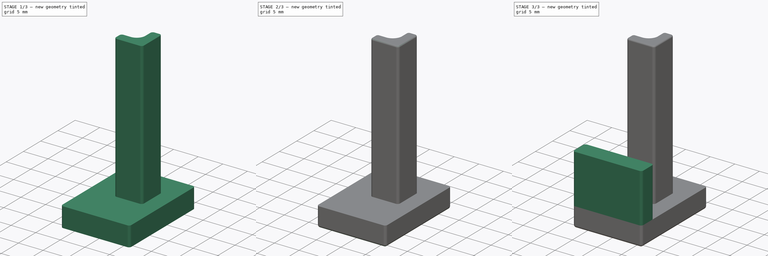
[diagram: build sequence overview — one tinted view per stage of 3, left to right]
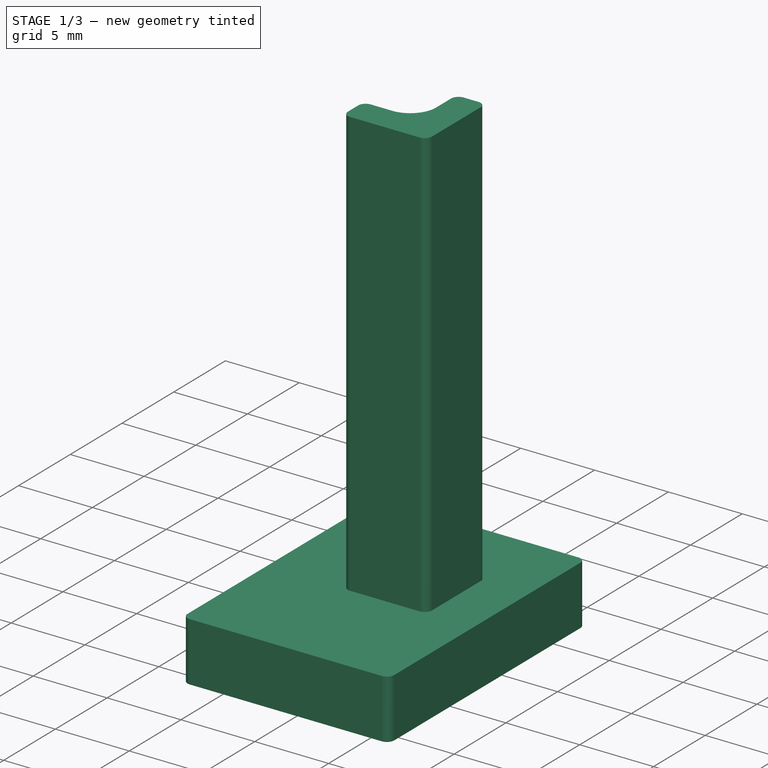
[diagram: stage 1 of 3 — iso view after this stage's code; geometry added in this stage tinted green]
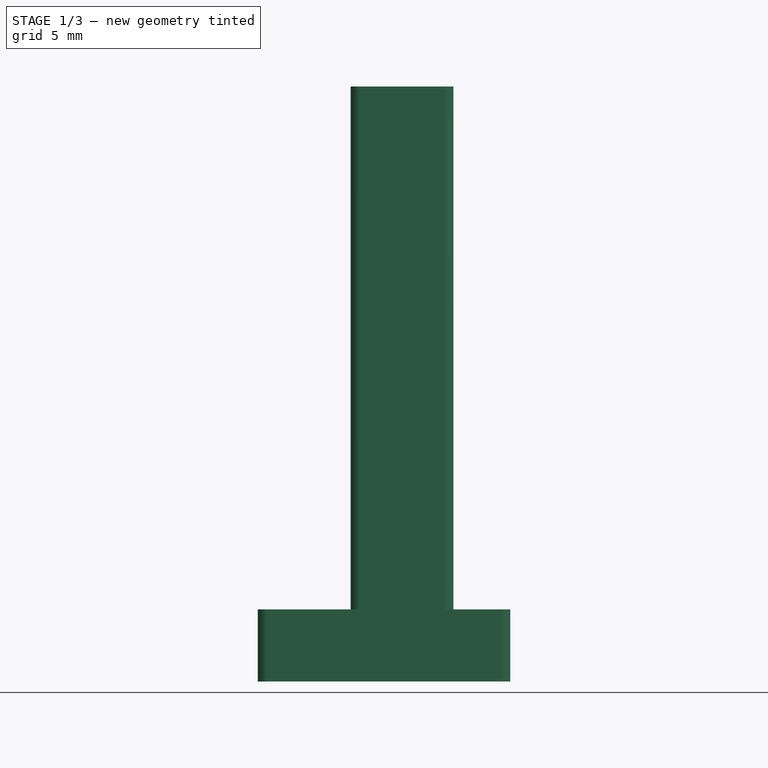
[diagram: stage 1 of 3 — front view after this stage's code; geometry added in this stage tinted green]
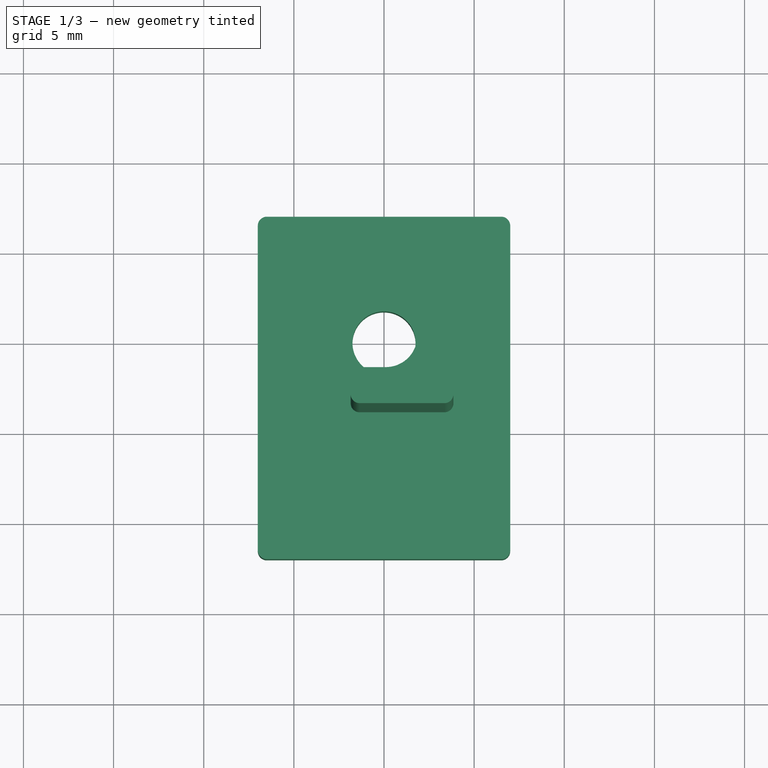
[diagram: stage 1 of 3 — top view after this stage's code; geometry added in this stage tinted green]
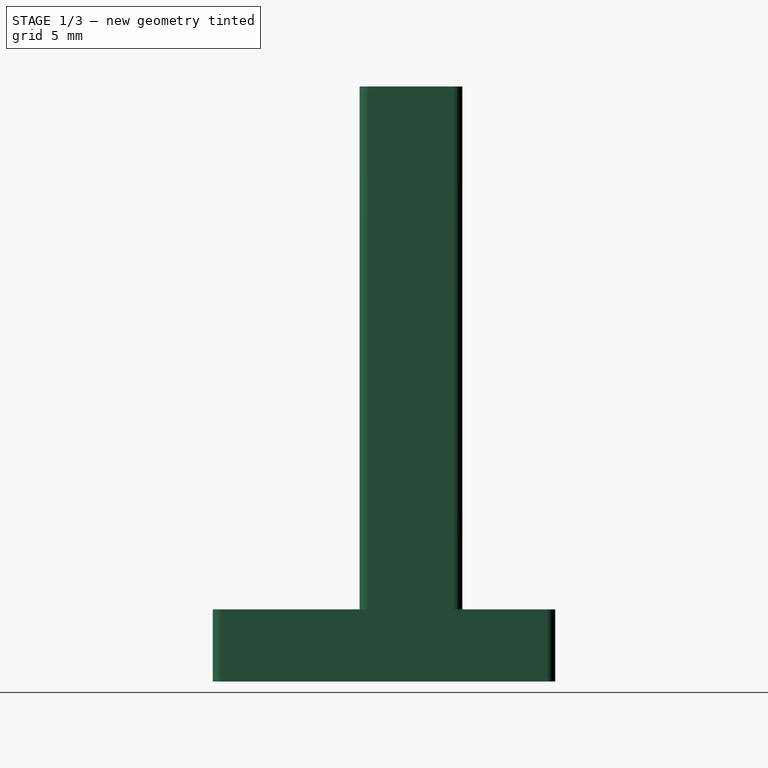
[diagram: stage 1 of 3 — right view after this stage's code; geometry added in this stage tinted green]
FCSTD DOCUMENT  (FreeCAD 0.21R33771 (Git))
Label: 20240522c_elfero_schraubenfassung_hinten
License: All rights reserved
LicenseURL: http://en.wikipedia.org/wiki/All_rights_reserved
objects: Sketcher::SketchObject×3, PartDesign::Pad×3, PartDesign::Fillet×3, PartDesign::Body×1
note: 16 computed .brp shape members not serialized (recipe doc carries the construction recipe); baked Part::Feature solids carry a one-line shape summary decoded from their .brp

FEATURE [Sketcher::SketchObject] Sketch
  FullyConstrained = true
  MapMode = 5
  Support = -> [XY_Plane]
  sketch-geometry (21):
    g0: Circle CenterX=0 CenterY=0 CenterZ=0 NormalX=0 NormalY=0 NormalZ=1 AngleXU=0 Radius=1.85
    g1: LineSegment StartX=2.35 StartY=1.85 StartZ=0 EndX=3.35 EndY=1.85 EndZ=0
    g2: LineSegment StartX=3.85 StartY=1.35 StartZ=0 EndX=3.85 EndY=-3.35 EndZ=0
    g3: LineSegment StartX=3.35 StartY=-3.85 StartZ=0 EndX=-1.35 EndY=-3.85 EndZ=0
    g4: LineSegment StartX=-1.85 StartY=-3.35 StartZ=0 EndX=-1.85 EndY=-2.35 EndZ=0
    g5: LineSegment StartX=-1.35 StartY=-1.85 StartZ=0 EndX=0.1 EndY=-1.85 EndZ=0
    g6: LineSegment StartX=1.85 StartY=-0.1 StartZ=0 EndX=1.85 EndY=1.35 EndZ=0
    g7: LineSegment StartX=1.85 StartY=1.85 StartZ=0 EndX=0 EndY=1.85 EndZ=0
    g8: LineSegment StartX=-1.85 StartY=-1.85 StartZ=0 EndX=-1.85 EndY=2e-16 EndZ=0
    g9: ArcOfCircle CenterX=3.35 CenterY=1.35 CenterZ=0 NormalX=0 NormalY=0 NormalZ=1 AngleXU=0 Radius=0.5 StartAngle=0 EndAngle=1.5708
    g10: GeomPoint X=3.85 Y=1.85 Z=0
    g11: ArcOfCircle CenterX=3.35 CenterY=-3.35 CenterZ=0 NormalX=0 NormalY=0 NormalZ=1 AngleXU=0 Radius=0.5 StartAngle=4.71239 EndAngle=6.28319
    g12: GeomPoint X=3.85 Y=-3.85 Z=0
    g13: ArcOfCircle CenterX=-1.35 CenterY=-3.35 CenterZ=0 NormalX=0 NormalY=0 NormalZ=1 AngleXU=0 Radius=0.5 StartAngle=3.14159 EndAngle=4.71239
    g14: GeomPoint X=-1.85 Y=-3.85 Z=0
    g15: ArcOfCircle CenterX=-1.35 CenterY=-2.35 CenterZ=0 NormalX=0 NormalY=0 NormalZ=1 AngleXU=0 Radius=0.5 StartAngle=1.5708 EndAngle=3.14159
    g16: GeomPoint X=-1.85 Y=-1.85 Z=0
    g17: ArcOfCircle CenterX=0.1 CenterY=-0.1 CenterZ=0 NormalX=0 NormalY=0 NormalZ=1 AngleXU=0 Radius=1.75 StartAngle=4.71239 EndAngle=6.28319
    g18: GeomPoint X=1.85 Y=-1.85 Z=0
    g19: ArcOfCircle CenterX=2.35 CenterY=1.35 CenterZ=0 NormalX=0 NormalY=0 NormalZ=1 AngleXU=0 Radius=0.5 StartAngle=1.5708 EndAngle=3.14159
    g20: GeomPoint X=1.85 Y=1.85 Z=0
  constraints (48):
    c: Coincident(g0,g-1)
    c: Diameter(g0) = 3.7
    c: Horizontal(g1)
    c: Vertical(g2)
    c: Horizontal(g3)
    c: Vertical(g4)
    c: Horizontal(g5)
    c: Vertical(g6)
    c: DistanceY(g12,g10) = 5.7
    c: DistanceX(g14,g12) = 5.7
    c: Tangent(g6,g0)
    c: Tangent(g0,g5)
    c: Coincident(g7,g20)
    c: Coincident(g8,g16)
    c: Vertical(g8)
    c: Horizontal(g7)
    c: Tangent(g7,g0) = -1.5708
    c: Tangent(g8,g0) = 1.5708
    c: PointOnObject(g10,g1)
    c: PointOnObject(g10,g2)
    c: Tangent(g1,g9) = 1.5708
    c: Tangent(g2,g9) = 1.5708
    c: PointOnObject(g12,g2)
    c: PointOnObject(g12,g3)
    c: Tangent(g2,g11) = 1.5708
    c: Tangent(g3,g11) = 1.5708
    c: PointOnObject(g14,g3)
    c: PointOnObject(g14,g4)
    c: Tangent(g3,g13) = 1.5708
    c: Tangent(g4,g13) = 1.5708
    c: PointOnObject(g16,g5)
    c: PointOnObject(g16,g4)
    c: Tangent(g5,g15) = 1.5708
    c: Tangent(g4,g15) = 1.5708
    c: PointOnObject(g18,g5)
    c: PointOnObject(g18,g6)
    c: Tangent(g5,g17) = -1.5708
    c: Tangent(g6,g17) = -1.5708
    c: PointOnObject(g20,g1)
    c: PointOnObject(g20,g6)
    c: Tangent(g1,g19) = 1.5708
    c: Tangent(g6,g19) = 1.5708
    c: Diameter(g17) = 3.5
    c: Equal(g15,g19)
    c: Radius(g19) = 0.5
    c: Equal(g9,g11)
    c: Equal(g11,g13)
    c: Radius(g9) = 0.5
FEATURE [PartDesign::Pad] Pad
  Direction = (0,0,1)
  Length = 29
  Length2 = 10
  Profile = -> Sketch
  ReferenceAxis = -> Sketch [N_Axis]
  Type = 0
FEATURE [Sketcher::SketchObject] Sketch001
  FullyConstrained = true
  MapMode = 5
  Support = -> [XY_Plane]
  sketch-geometry (13):
    g0: ArcOfCircle CenterX=-6.5 CenterY=6.5 CenterZ=0 NormalX=0 NormalY=0 NormalZ=1 AngleXU=0 Radius=0.5 StartAngle=1.5708 EndAngle=3.14159
    g1: LineSegment StartX=-6.5 StartY=7 StartZ=0 EndX=6.5 EndY=7 EndZ=0
    g2: ArcOfCircle CenterX=6.5 CenterY=6.5 CenterZ=0 NormalX=0 NormalY=0 NormalZ=1 AngleXU=0 Radius=0.5 StartAngle=0 EndAngle=1.5708
    g3: LineSegment StartX=7 StartY=6.5 StartZ=0 EndX=7 EndY=-11.5 EndZ=0
    g4: ArcOfCircle CenterX=6.5 CenterY=-11.5 CenterZ=0 NormalX=0 NormalY=0 NormalZ=1 AngleXU=0 Radius=0.5 StartAngle=4.71239 EndAngle=6.28319
    g5: LineSegment StartX=6.5 StartY=-12 StartZ=0 EndX=-6.5 EndY=-12 EndZ=0
    g6: ArcOfCircle CenterX=-6.5 CenterY=-11.5 CenterZ=0 NormalX=0 NormalY=0 NormalZ=1 AngleXU=0 Radius=0.5 StartAngle=3.14159 EndAngle=4.71239
    g7: LineSegment StartX=-7 StartY=-11.5 StartZ=0 EndX=-7 EndY=6.5 EndZ=0
    g8: GeomPoint X=-7 Y=7 Z=0
    g9: GeomPoint X=7 Y=-12 Z=0
    g10: LineSegment StartX=0 StartY=0 StartZ=0 EndX=-6.5 EndY=6.5 EndZ=0
    g11: Circle CenterX=0 CenterY=0 CenterZ=0 NormalX=0 NormalY=0 NormalZ=1 AngleXU=0 Radius=1.75
    g12: LineSegment StartX=6.5 StartY=6.5 StartZ=0 EndX=0 EndY=0 EndZ=0
  constraints (30):
    c: Tangent(g0,g1) = 1.5708
    c: Tangent(g1,g2) = 1.5708
    c: Tangent(g2,g3) = 1.5708
    c: Tangent(g3,g4) = 1.5708
    c: Tangent(g4,g5) = 1.5708
    c: Tangent(g5,g6) = 1.5708
    c: Tangent(g6,g7) = 1.5708
    c: Tangent(g7,g0) = 1.5708
    c: Horizontal(g1)
    c: Horizontal(g5)
    c: Vertical(g3)
    c: Vertical(g7)
    c: Equal(g0,g2)
    c: Equal(g2,g4)
    c: Equal(g4,g6)
    c: PointOnObject(g8,g1)
    c: PointOnObject(g8,g7)
    c: PointOnObject(g9,g3)
    c: PointOnObject(g9,g5)
    c: Radius(g2) = 0.5
    c: Coincident(g10,g-1)
    c: Coincident(g10,g0)
    c: Coincident(g11,g10)
    c: Diameter(g11) = 3.5
    c: Coincident(g12,g2)
    c: Coincident(g12,g11)
    c: Equal(g12,g10)
    c: DistanceX(g0,g2) = 14
    c: DistanceY(g8) = 7
    c: DistanceY(g5) = -12
FEATURE [PartDesign::Pad] Pad001
  BaseFeature = -> Pad
  Direction = (0,0,1)
  Length = 4
  Length2 = 10
  Profile = -> Sketch001
  ReferenceAxis = -> Sketch001 [N_Axis]
  Reversed = true
  Type = 0
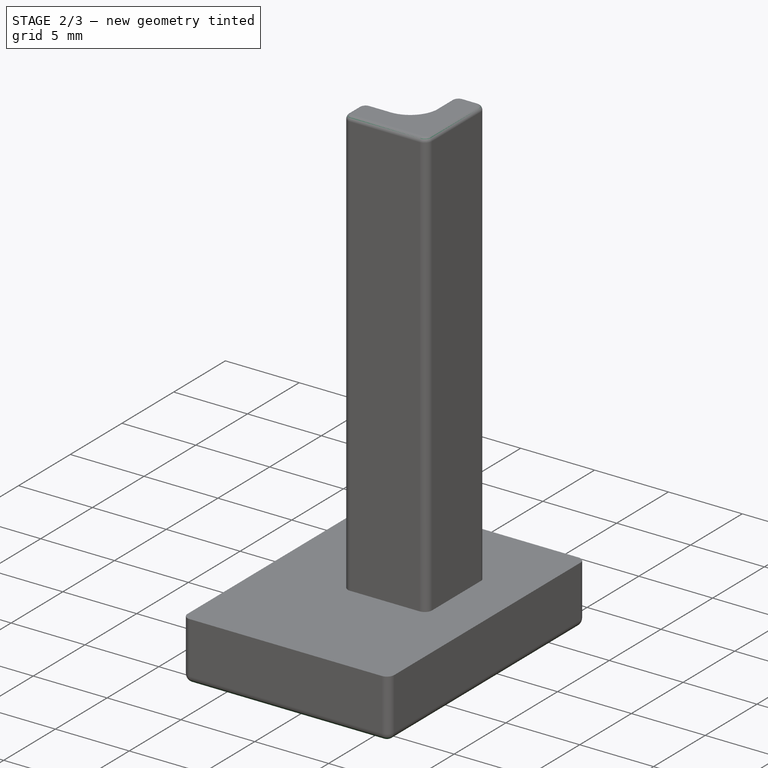
[diagram: stage 2 of 3 — iso view after this stage's code; geometry added in this stage tinted green]
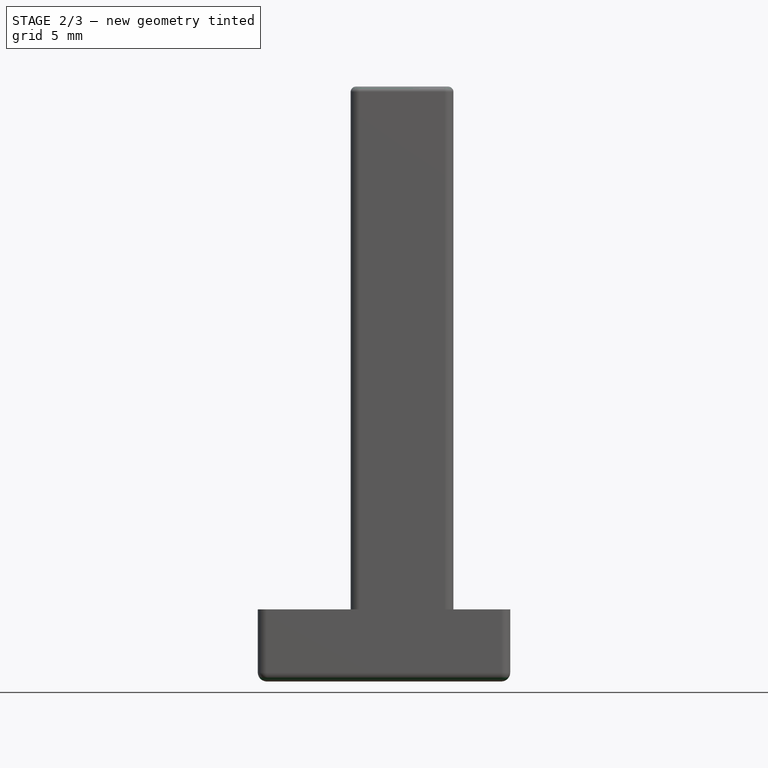
[diagram: stage 2 of 3 — front view after this stage's code; geometry added in this stage tinted green]
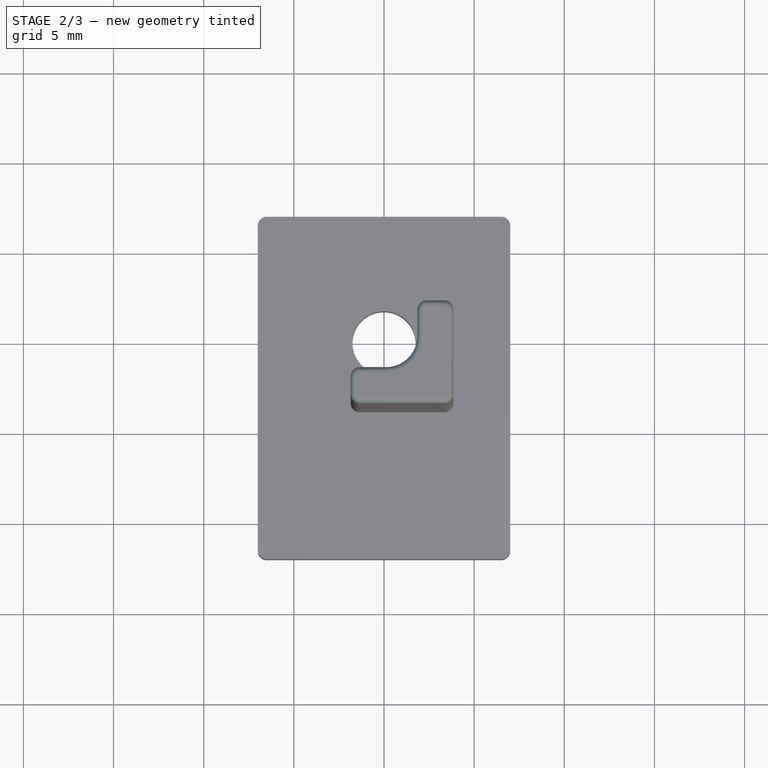
[diagram: stage 2 of 3 — top view after this stage's code; geometry added in this stage tinted green]
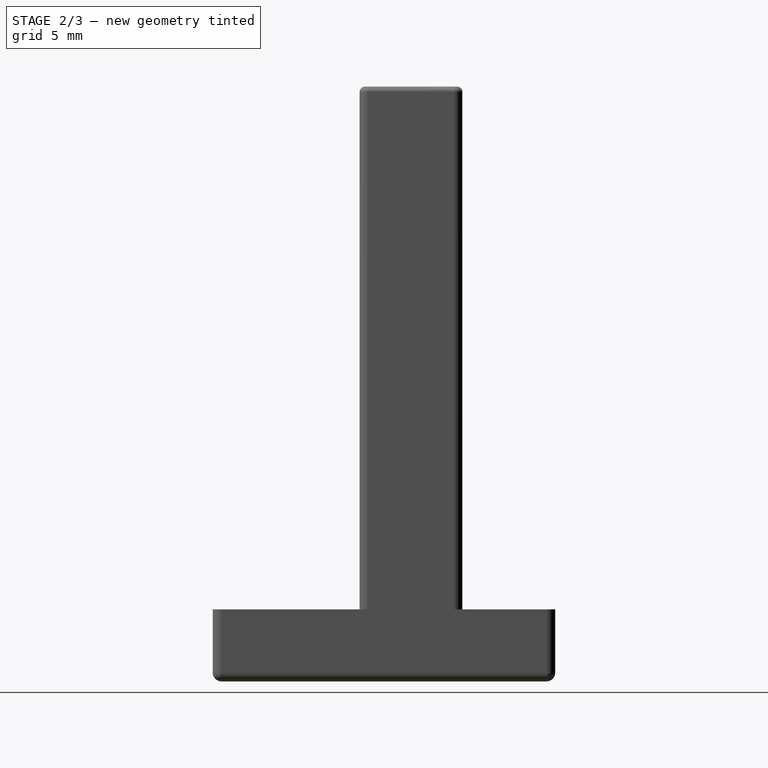
[diagram: stage 2 of 3 — right view after this stage's code; geometry added in this stage tinted green]
FEATURE [PartDesign::Fillet] Fillet
  Base = -> Pad001 [Face5]
  BaseFeature = -> Pad001
  Radius = 0.5
  SupportTransform = false
  UseAllEdges = false
FEATURE [PartDesign::Fillet] Fillet001
  Base = -> Fillet [Face33]
  BaseFeature = -> Fillet
  Radius = 0.3
  SupportTransform = false
  UseAllEdges = false
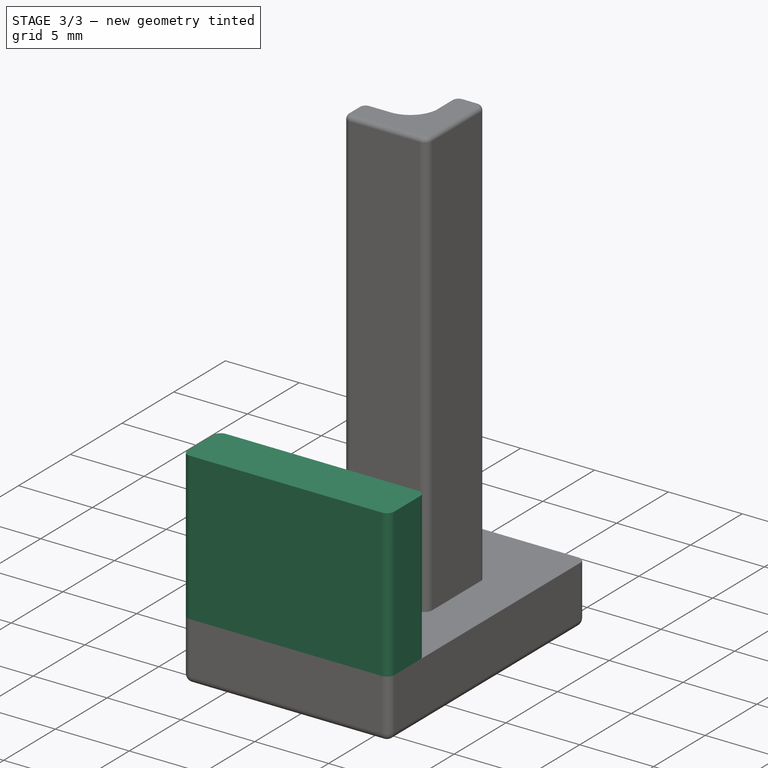
[diagram: stage 3 of 3 — iso view after this stage's code; geometry added in this stage tinted green]
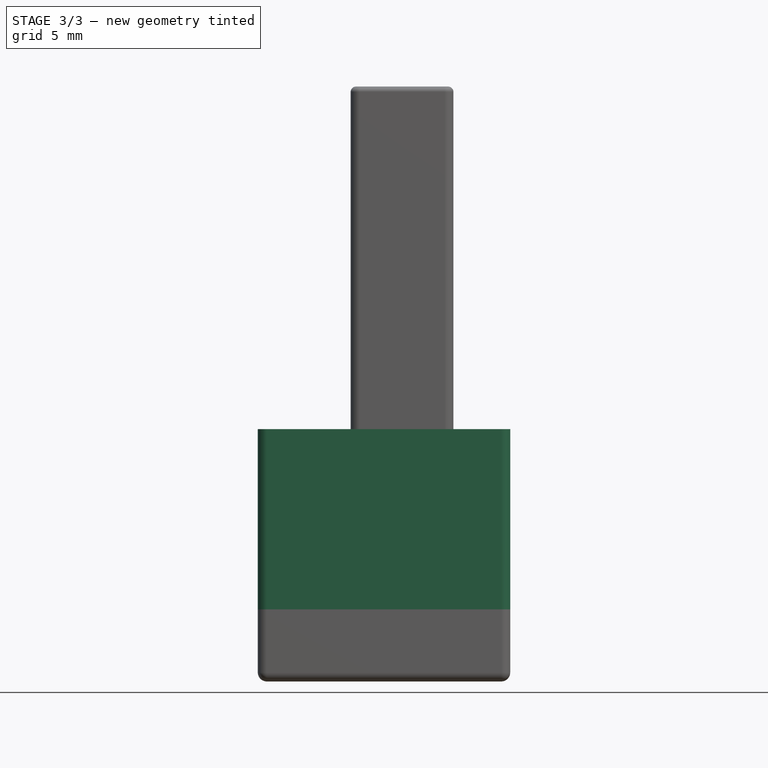
[diagram: stage 3 of 3 — front view after this stage's code; geometry added in this stage tinted green]
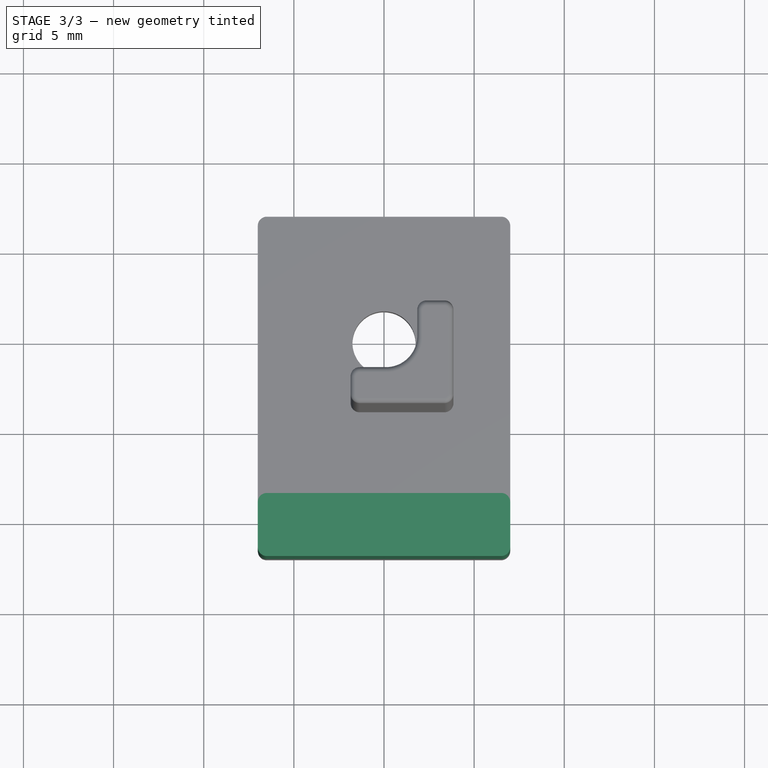
[diagram: stage 3 of 3 — top view after this stage's code; geometry added in this stage tinted green]
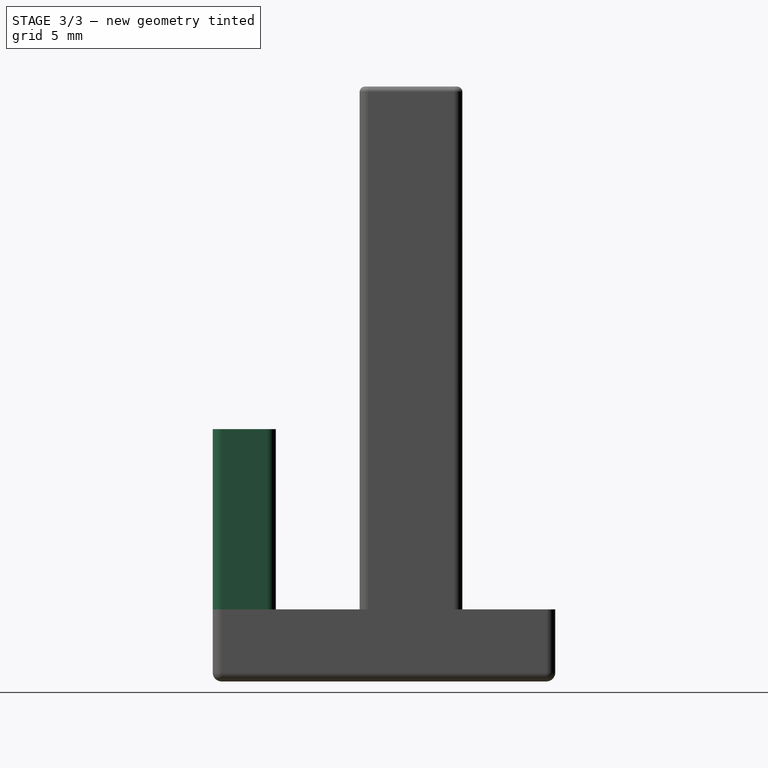
[diagram: stage 3 of 3 — right view after this stage's code; geometry added in this stage tinted green]
FEATURE [Sketcher::SketchObject] Sketch002
  FullyConstrained = false
  MapMode = 5
  Support = -> [XY_Plane]
  sketch-geometry (12):
    g0: ArcOfCircle CenterX=-6.5 CenterY=-9 CenterZ=0 NormalX=0 NormalY=0 NormalZ=1 AngleXU=0 Radius=0.5 StartAngle=1.5708 EndAngle=3.14159
    g1: LineSegment StartX=-6.5 StartY=-8.5 StartZ=0 EndX=6.5 EndY=-8.5 EndZ=0
    g2: ArcOfCircle CenterX=6.5 CenterY=-9 CenterZ=0 NormalX=0 NormalY=0 NormalZ=1 AngleXU=0 Radius=0.5 StartAngle=5e-16 EndAngle=1.5708
    g3: LineSegment StartX=7 StartY=-9 StartZ=0 EndX=7 EndY=-11.5 EndZ=0
    g4: ArcOfCircle CenterX=6.5 CenterY=-11.5 CenterZ=0 NormalX=0 NormalY=0 NormalZ=1 AngleXU=0 Radius=0.5 StartAngle=4.71239 EndAngle=6.28319
    g5: LineSegment StartX=6.5 StartY=-12 StartZ=0 EndX=-6.5 EndY=-12 EndZ=0
    g6: ArcOfCircle CenterX=-6.5 CenterY=-11.5 CenterZ=0 NormalX=0 NormalY=0 NormalZ=1 AngleXU=0 Radius=0.5 StartAngle=3.14159 EndAngle=4.71239
    g7: LineSegment StartX=-7 StartY=-11.5 StartZ=0 EndX=-7 EndY=-9 EndZ=0
    g8: GeomPoint X=-7 Y=-8.5 Z=0
    g9: GeomPoint X=7 Y=-12 Z=0
    g10: LineSegment StartX=6.5 StartY=-9 StartZ=0 EndX=0 EndY=-15.2659 EndZ=0
    g11: LineSegment StartX=-6.5 StartY=-9 StartZ=0 EndX=0 EndY=-15.2659 EndZ=0
  constraints (28):
    c: Tangent(g0,g1) = 1.5708
    c: Tangent(g1,g2) = 1.5708
    c: Tangent(g2,g3) = 1.5708
    c: Tangent(g3,g4) = 1.5708
    c: Tangent(g4,g5) = 1.5708
    c: Tangent(g5,g6) = 1.5708
    c: Tangent(g6,g7) = 1.5708
    c: Tangent(g7,g0) = 1.5708
    c: Horizontal(g1)
    c: Horizontal(g5)
    c: Vertical(g3)
    c: Vertical(g7)
    c: Equal(g0,g2)
    c: Equal(g2,g4)
    c: Equal(g4,g6)
    c: PointOnObject(g8,g1)
    c: PointOnObject(g8,g7)
    c: PointOnObject(g9,g3)
    c: PointOnObject(g9,g5)
    c: DistanceX(g6,g3) = 14
    c: Coincident(g10,g2)
    c: PointOnObject(g10,g-2)
    c: Coincident(g11,g0)
    c: Coincident(g11,g10)
    c: Equal(g10,g11)
    c: Radius(g2) = 0.5
    c: DistanceY(g4) = -12
    c: DistanceY(g5,g0) = 3.5
FEATURE [PartDesign::Pad] Pad002
  BaseFeature = -> Fillet001
  Direction = (0,0,1)
  Length = 10
  Length2 = 10
  Profile = -> Sketch002
  ReferenceAxis = -> Sketch002 [N_Axis]
  Type = 0
FEATURE [PartDesign::Fillet] Fillet002
  Base = -> Pad002 [Face36]
  BaseFeature = -> Pad002
  Radius = 1
  SupportTransform = false
  UseAllEdges = false
FEATURE [PartDesign::Body] Body  label="body"
  Group = -> [Sketch,Pad,Sketch001,Pad001,Fillet,Fillet001,Sketch002,Pad002,Fillet002]
  Origin = -> Origin
  Tip = -> Fillet002
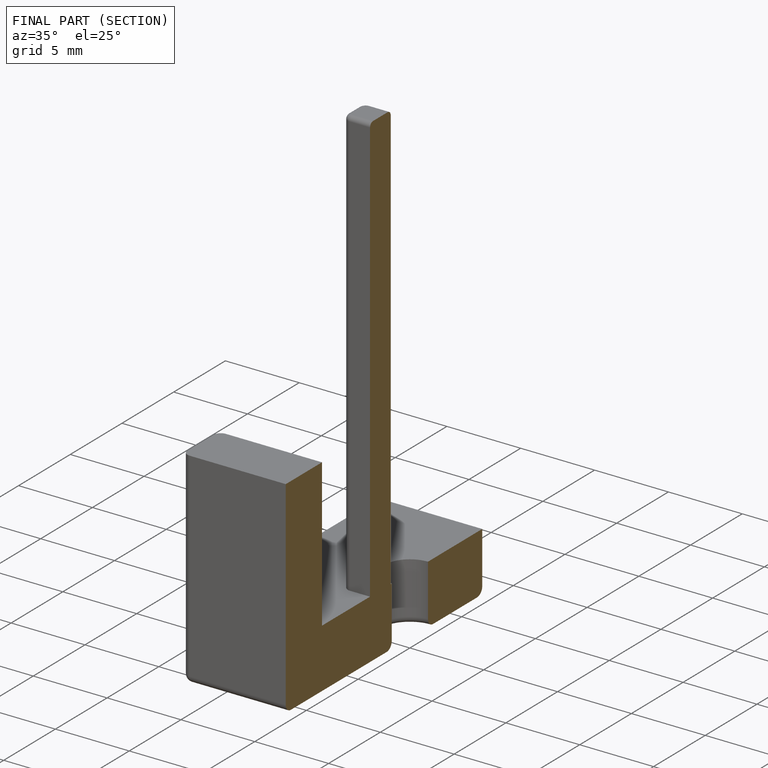
[diagram: finished part — half-section view (interior)]
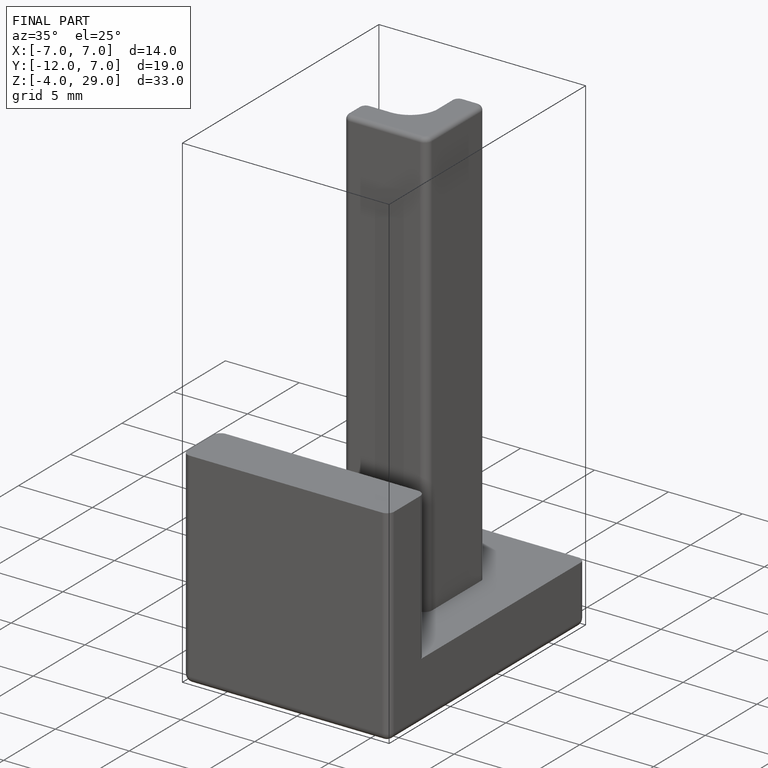
[diagram: finished part — iso view with bounding-box wireframe]
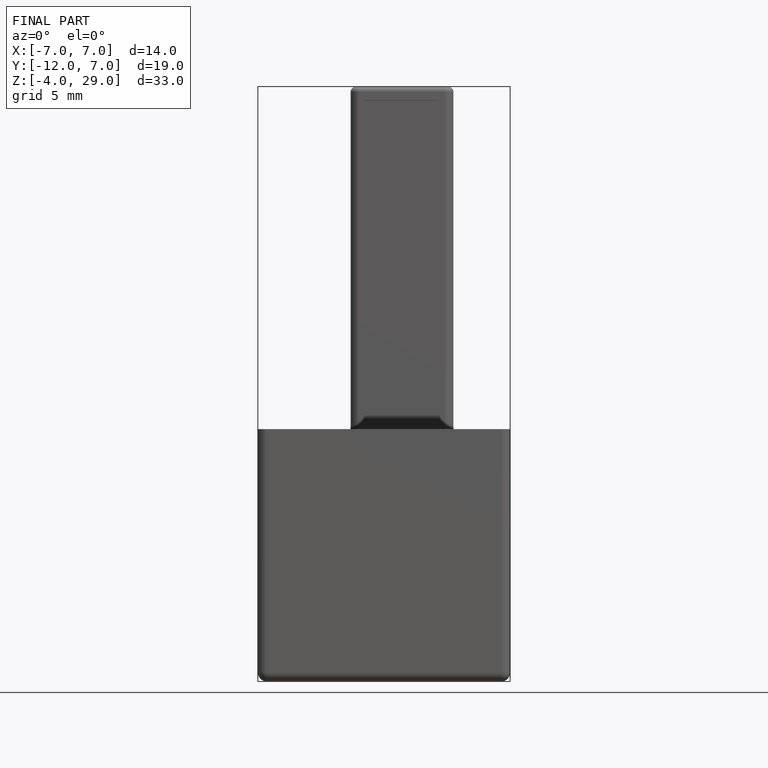
[diagram: finished part — front view with bounding-box wireframe]
